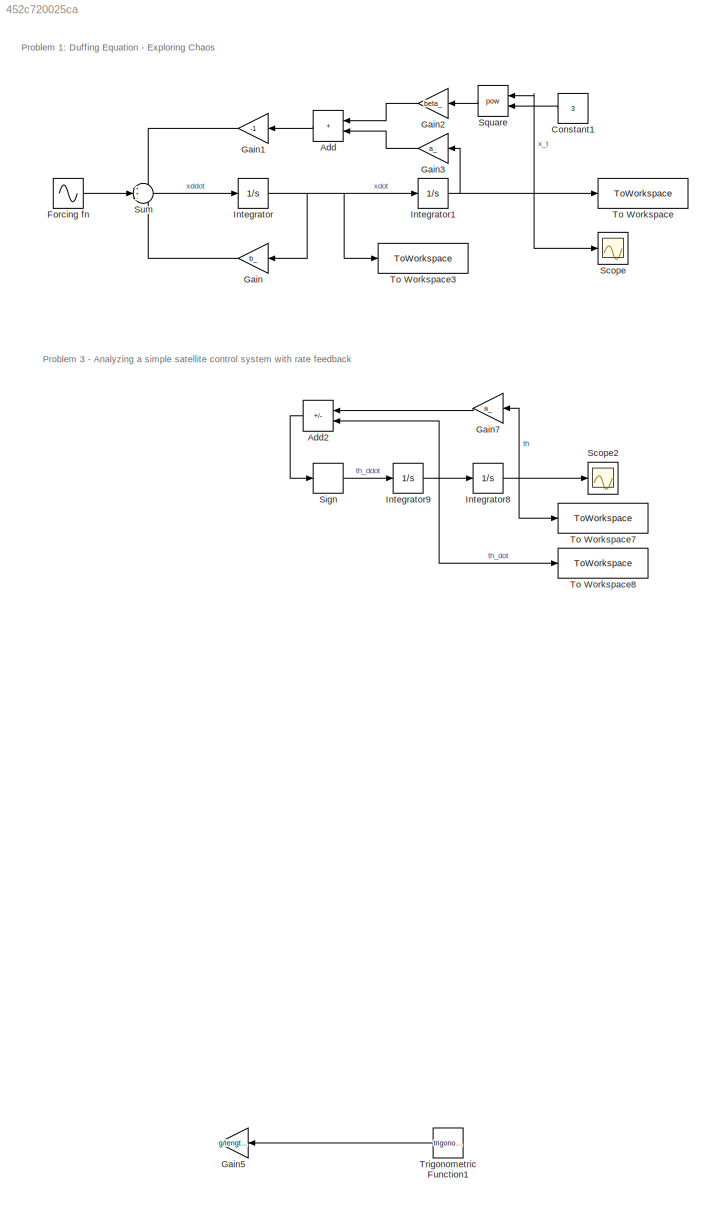
MODEL slx_452c720025ca
KIND model
CONFIG AbsTol = auto
CONFIG EnableMultiTasking = off
CONFIG FixedStep = auto
CONFIG MaxStep = auto
CONFIG MinStep = auto
CONFIG RelTol = 1e-5
CONFIG SampleTimeConstraint = Unconstrained
CONFIG SolverName = VariableStepAuto
CONFIG StartTime = 0.0
CONFIG StopTime = t_sim
BLOCK [Sum] Add
  Commented = on
  IconShape = rectangular
  Ports = [2, 1]
BLOCK [Sum] Add2
  IconShape = rectangular
  Inputs = --
  Ports = [2, 1]
BLOCK [Constant] Constant1
  Commented = on
  Value = 3
BLOCK [Sin] Forcing fn
  Amplitude = gamma_
  Commented = on
  Frequency = omega_
  Phase = pi/2
  Ports = [0, 1]
  SampleTime = 0
BLOCK [Gain] Gain
  Commented = on
  Gain = b_
BLOCK [Gain] Gain1
  Commented = on
  Gain = -1
BLOCK [Gain] Gain2
  Commented = on
  Gain = beta_
BLOCK [Gain] Gain3
  Commented = on
  Gain = a_
BLOCK [Gain] Gain5
  Commented = on
  Gain = g/length_a
BLOCK [Gain] Gain7
  Gain = a_
BLOCK [Integrator] Integrator
  Commented = on
  InitialCondition = xdot_0
  Ports = [1, 1]
BLOCK [Integrator] Integrator1
  Commented = on
  InitialCondition = x_0
  Ports = [1, 1]
BLOCK [Integrator] Integrator8
  InitialCondition = th_0
  Ports = [1, 1]
BLOCK [Integrator] Integrator9
  InitialCondition = th_dot0
  Ports = [1, 1]
BLOCK [Scope] Scope
  Commented = on
  Floating = off
  NumInputPorts = 1
  Ports = [1]
  ScopeSpecificationString = Simulink.scopes.TimeScopeBlockCfg('CurrentConfiguration', extmgr.ConfigurationSet(extmgr.Configuration('Core','General UI',true),extmgr.Configuration('Core','Source UI',true),extmgr.Configuration('Sources','WiredSimulink',true),extmgr.Configuration('Visuals','Time Domain',true,'SerializedDisplays',{struct('MinYLimReal','0.2274','MaxYLimReal','1.48284','YLabelReal','','MinYLimMag','0.2274','MaxYLim...<+1314ch>
BLOCK [Scope] Scope2
  Floating = off
  NumInputPorts = 1
  Ports = [1]
  ScopeSpecificationString = Simulink.scopes.TimeScopeBlockCfg('CurrentConfiguration', extmgr.ConfigurationSet(extmgr.Configuration('Core','General UI',true),extmgr.Configuration('Core','Source UI',true),extmgr.Configuration('Sources','WiredSimulink',true,'DataLoggingVariableName','ScopeData1'),extmgr.Configuration('Visuals','Time Domain',true,'SerializedDisplays',{struct('MinYLimReal','-0.11347','MaxYLimReal','1.02216','YLab...<+1361ch>
BLOCK [Signum] Sign
  ZeroCross = off
BLOCK [Math] Square
  Commented = on
  Operator = pow
  Ports = [2, 1]
BLOCK [Sum] Sum
  Commented = on
  Inputs = ++-
  Ports = [3, 1]
BLOCK [ToWorkspace] To Workspace
  Commented = on
  FixptAsFi = on
  MaxDataPoints = inf
  Ports = [1]
  SampleTime = -1
  SaveFormat = Timeseries
  VariableName = x_pos
BLOCK [ToWorkspace] To Workspace3
  Commented = on
  FixptAsFi = on
  MaxDataPoints = inf
  Ports = [1]
  SampleTime = -1
  SaveFormat = Timeseries
  VariableName = x_dot
BLOCK [ToWorkspace] To Workspace7
  FixptAsFi = on
  MaxDataPoints = inf
  Ports = [1]
  SampleTime = -1
  SaveFormat = Timeseries
  VariableName = th
BLOCK [ToWorkspace] To Workspace8
  FixptAsFi = on
  MaxDataPoints = inf
  Ports = [1]
  SampleTime = -1
  SaveFormat = Timeseries
  VariableName = th_dot
BLOCK [Trigonometry] Trigonometric Function1
  Commented = on
  Ports = [1, 1]
ANNOTATION (root): Problem 1: Duffing Equation - Exploring Chaos
ANNOTATION (root): Problem 3 - Analyzing a simple satellite control system with rate feedback
LINE Add2:1 -> Sign:1
LINE Add:1 -> Gain1:1
LINE Constant1:1 -> Square:2
LINE Forcing fn:1 -> Sum:2
LINE Gain1:1 -> Sum:1
LINE Gain2:1 -> Add:1
LINE Gain3:1 -> Add:2
LINE Gain7:1 -> Add2:1
LINE Gain:1 -> Sum:3
NET Integrator1:1 -> Gain3:1, Scope:1, Square:1, To Workspace:1
NET Integrator8:1 -> Gain7:1, Scope2:1, To Workspace7:1
NET Integrator9:1 -> Add2:2, Integrator8:1, To Workspace8:1
NET Integrator:1 -> Gain:1, Integrator1:1, To Workspace3:1
LINE Sign:1 -> Integrator9:1
LINE Square:1 -> Gain2:1
LINE Sum:1 -> Integrator:1
LINE Trigonometric Function1:1 -> Gain5:1
note: NET lines group one-source signal fan-out (src -> all destinations, sorted); 1:1 wires keep LINE
